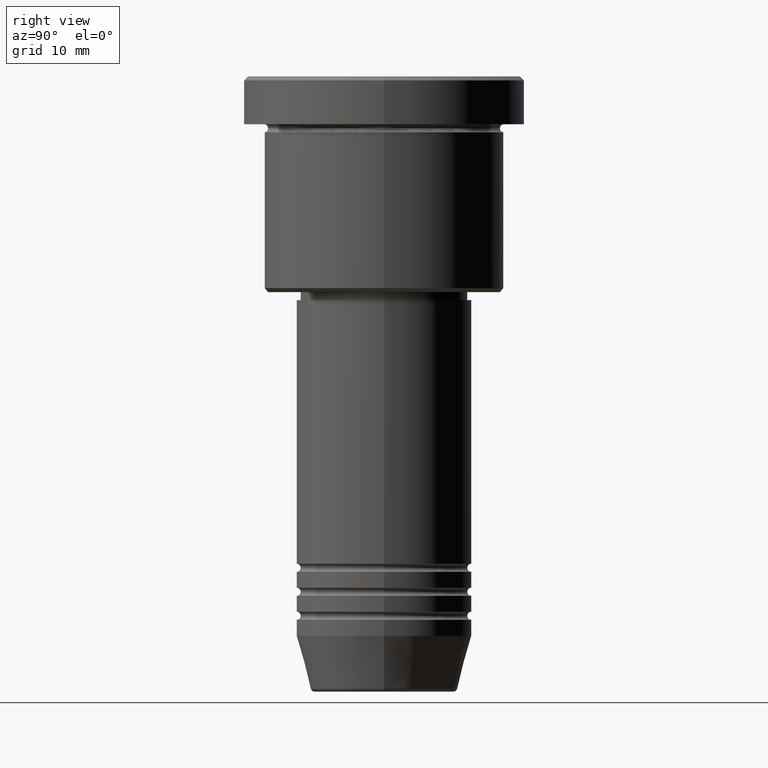
[diagram: clean part render]
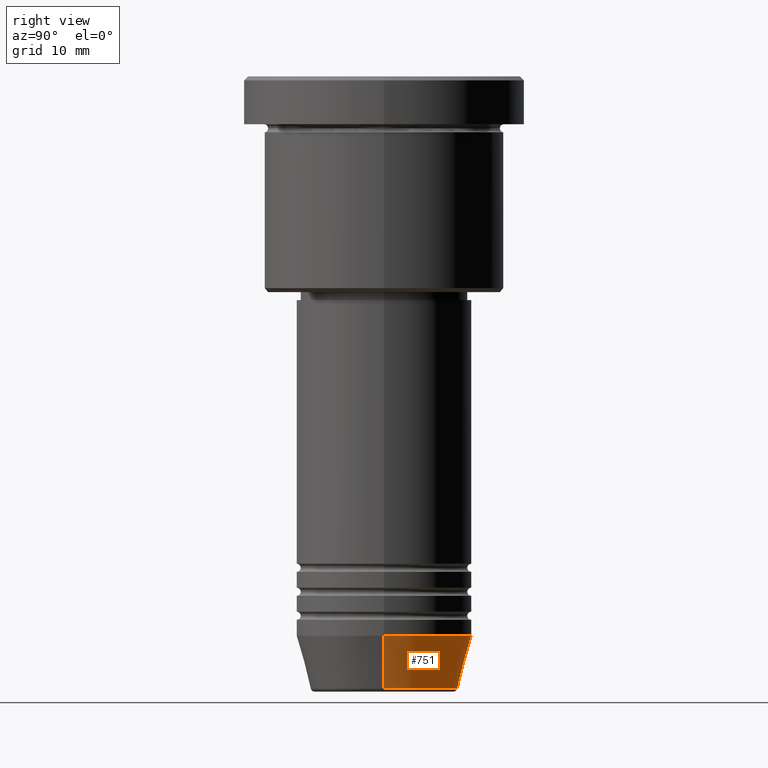
[diagram: same view with one face highlighted and labeled with its STEP entity id]
A machine part, right view. The second image highlights one B-rep face of the part: STEP entity #751.
In plain terms, the highlighted conical surface has half-angle 15 deg.
Its self-contained STEP definition (entity closure, byte-faithful):
#65 = CIRCLE ( 'NONE', #212, 9.223655072137187716 ) ;
#87 = DIRECTION ( 'NONE',  ( -0.000000000000000000, -0.000000000000000000, 1.000000000000000000 ) ) ;
#89 = LINE ( 'NONE', #718, #1149 ) ;
#117 = DIRECTION ( 'NONE',  ( -0.000000000000000000, -0.000000000000000000, 1.000000000000000000 ) ) ;
#145 = CARTESIAN_POINT ( 'NONE',  ( 0.000000000000000000, 0.000000000000000000, -70.00000000000000000 ) ) ;
#148 = ORIENTED_EDGE ( 'NONE', *, *, #837, .T. ) ;
#153 = ORIENTED_EDGE ( 'NONE', *, *, #535, .F. ) ;
#169 = EDGE_LOOP ( 'NONE', ( #148, #995, #814, #153 ) ) ;
#170 = CARTESIAN_POINT ( 'NONE',  ( 0.000000000000000000, 0.000000000000000000, -76.62940952255125637 ) ) ;
#188 = VERTEX_POINT ( 'NONE', #592 ) ;
#199 = CARTESIAN_POINT ( 'NONE',  ( 0.000000000000000000, 0.000000000000000000, -70.00000000000000000 ) ) ;
#212 = AXIS2_PLACEMENT_3D ( 'NONE', #170, #87, #1072 ) ;
#248 = DIRECTION ( 'NONE',  ( 1.000000000000000000, 0.000000000000000000, 0.000000000000000000 ) ) ;
#327 = CIRCLE ( 'NONE', #363, 11.00000000000000000 ) ;
#363 = AXIS2_PLACEMENT_3D ( 'NONE', #199, #117, #557 ) ;
#393 = EDGE_CURVE ( 'NONE', #188, #491, #327, .T. ) ;
#408 = DIRECTION ( 'NONE',  ( -0.000000000000000000, -0.000000000000000000, 1.000000000000000000 ) ) ;
#465 = DIRECTION ( 'NONE',  ( 0.2588190451025213501, 0.000000000000000000, 0.9659258262890680902 ) ) ;
#479 = EDGE_CURVE ( 'NONE', #561, #491, #704, .T. ) ;
#491 = VERTEX_POINT ( 'NONE', #1070 ) ;
#535 = EDGE_CURVE ( 'NONE', #738, #188, #89, .T. ) ;
#557 = DIRECTION ( 'NONE',  ( 1.000000000000000000, 0.000000000000000000, 0.000000000000000000 ) ) ;
#561 = VERTEX_POINT ( 'NONE', #924 ) ;
#592 = CARTESIAN_POINT ( 'NONE',  ( 11.00000000000000000, 0.000000000000000000, -70.00000000000000000 ) ) ;
#643 = VECTOR ( 'NONE', #865, 1000.000000000000000 ) ;
#698 = CARTESIAN_POINT ( 'NONE',  ( 9.223655072137187716, 0.000000000000000000, -76.62940952255125637 ) ) ;
#704 = LINE ( 'NONE', #1076, #643 ) ;
#718 = CARTESIAN_POINT ( 'NONE',  ( 11.00000000000000000, 0.000000000000000000, -70.00000000000000000 ) ) ;
#738 = VERTEX_POINT ( 'NONE', #698 ) ;
#751 = ADVANCED_FACE ( 'NONE', ( #956 ), #1008, .T. ) ;
#814 = ORIENTED_EDGE ( 'NONE', *, *, #393, .F. ) ;
#837 = EDGE_CURVE ( 'NONE', #738, #561, #65, .T. ) ;
#865 = DIRECTION ( 'NONE',  ( -0.2588190451025213501, 3.169619151431772337E-17, 0.9659258262890680902 ) ) ;
#924 = CARTESIAN_POINT ( 'NONE',  ( -9.223655072137187716, 1.238341722557647004E-15, -76.62940952255125637 ) ) ;
#956 = FACE_OUTER_BOUND ( 'NONE', #169, .T. ) ;
#995 = ORIENTED_EDGE ( 'NONE', *, *, #479, .T. ) ;
#1008 = CONICAL_SURFACE ( 'NONE', #1152, 11.00000000000000000, 0.2617993877991500740 ) ;
#1070 = CARTESIAN_POINT ( 'NONE',  ( -11.00000000000000000, 1.347111479062088405E-15, -70.00000000000000000 ) ) ;
#1072 = DIRECTION ( 'NONE',  ( 1.000000000000000000, 0.000000000000000000, 0.000000000000000000 ) ) ;
#1076 = CARTESIAN_POINT ( 'NONE',  ( -11.00000000000000000, 1.347111479062088405E-15, -70.00000000000000000 ) ) ;
#1149 = VECTOR ( 'NONE', #465, 1000.000000000000000 ) ;
#1152 = AXIS2_PLACEMENT_3D ( 'NONE', #145, #408, #248 ) ;